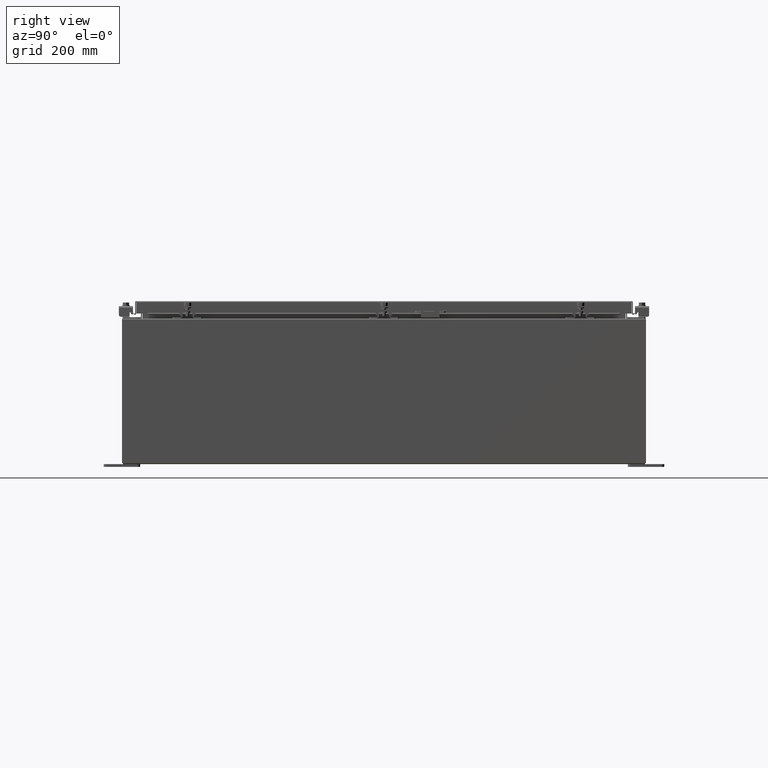
[diagram: clean part render]
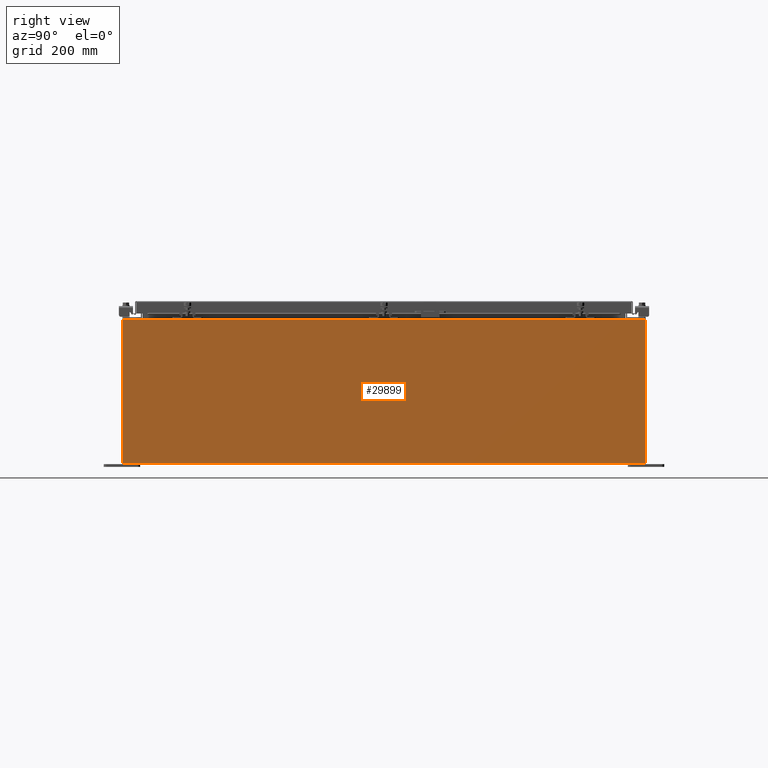
[diagram: same view with one face highlighted and labeled with its STEP entity id]
A machine part, right view. The second image highlights one B-rep face of the part: STEP entity #29899.
In plain terms, the highlighted planar face has unit normal (-1, 0, 0).
Its self-contained STEP definition (entity closure, byte-faithful):
#212 = VERTEX_POINT ( 'NONE', #6620 ) ;
#372 = DIRECTION ( 'NONE',  ( -1.000000000000000000, 0.0000000000000000000, 3.523082860860887800E-015 ) ) ;
#1472 = ORIENTED_EDGE ( 'NONE', *, *, #31131, .T. ) ;
#1556 = FACE_OUTER_BOUND ( 'NONE', #36910, .T. ) ;
#1886 = ORIENTED_EDGE ( 'NONE', *, *, #21458, .T. ) ;
#3416 = LINE ( 'NONE', #3951, #29025 ) ;
#3951 = CARTESIAN_POINT ( 'NONE',  ( 15.00000000000003400, 17.92530000000000000, 9.837599999999994800 ) ) ;
#4575 = ORIENTED_EDGE ( 'NONE', *, *, #23512, .T. ) ;
#5395 = EDGE_CURVE ( 'NONE', #22399, #39773, #17383, .T. ) ;
#6362 = CARTESIAN_POINT ( 'NONE',  ( 14.99999999999999800, -17.92530000000000000, 0.01300000000000022300 ) ) ;
#6620 = CARTESIAN_POINT ( 'NONE',  ( 15.00000000000003400, 17.92530000000000000, 9.837599999999994800 ) ) ;
#6887 = DIRECTION ( 'NONE',  ( 2.147696684564447600E-031, -1.000000000000000000, 6.096072018129156600E-017 ) ) ;
#8188 = VERTEX_POINT ( 'NONE', #33761 ) ;
#9842 = VECTOR ( 'NONE', #40482, 39.37007874015748100 ) ;
#11982 = CARTESIAN_POINT ( 'NONE',  ( 14.99999999999999800, -17.92530000000000000, 0.01299999999999984700 ) ) ;
#17031 = PLANE ( 'NONE',  #19019 ) ;
#17383 = LINE ( 'NONE', #11982, #42954 ) ;
#19019 = AXIS2_PLACEMENT_3D ( 'NONE', #40377, #372, #23763 ) ;
#21458 = EDGE_CURVE ( 'NONE', #22399, #212, #29764, .T. ) ;
#22399 = VERTEX_POINT ( 'NONE', #22468 ) ;
#22468 = CARTESIAN_POINT ( 'NONE',  ( 14.99999999999999800, 17.92530000000000000, 0.01299999999999766100 ) ) ;
#23512 = EDGE_CURVE ( 'NONE', #212, #8188, #3416, .T. ) ;
#23763 = DIRECTION ( 'NONE',  ( 3.523082860860887800E-015, 0.0000000000000000000, 1.000000000000000000 ) ) ;
#25501 = LINE ( 'NONE', #33481, #42167 ) ;
#29025 = VECTOR ( 'NONE', #40757, 39.37007874015748100 ) ;
#29764 = LINE ( 'NONE', #37146, #9842 ) ;
#29899 = ADVANCED_FACE ( 'NONE', ( #1556 ), #17031, .F. ) ;
#31131 = EDGE_CURVE ( 'NONE', #8188, #39773, #25501, .T. ) ;
#33325 = DIRECTION ( 'NONE',  ( -3.523082860860888200E-015, 0.0000000000000000000, -1.000000000000000000 ) ) ;
#33481 = CARTESIAN_POINT ( 'NONE',  ( 14.99999999999999800, -17.92530000000000000, -5.310705656892488900E-014 ) ) ;
#33761 = CARTESIAN_POINT ( 'NONE',  ( 15.00000000000003400, -17.92530000000000000, 9.837600000000001900 ) ) ;
#34372 = ORIENTED_EDGE ( 'NONE', *, *, #5395, .F. ) ;
#36910 = EDGE_LOOP ( 'NONE', ( #4575, #1472, #34372, #1886 ) ) ;
#37146 = CARTESIAN_POINT ( 'NONE',  ( 14.99999999999999800, 17.92530000000000000, -4.916003674356303100E-014 ) ) ;
#39773 = VERTEX_POINT ( 'NONE', #6362 ) ;
#40377 = CARTESIAN_POINT ( 'NONE',  ( 14.99999999999999800, 0.0000000000000000000, -5.310705656892488900E-014 ) ) ;
#40482 = DIRECTION ( 'NONE',  ( 3.523082860860888200E-015, -2.201926788038055100E-016, 1.000000000000000000 ) ) ;
#40757 = DIRECTION ( 'NONE',  ( -0.0000000000000000000, -1.000000000000000000, -0.0000000000000000000 ) ) ;
#42167 = VECTOR ( 'NONE', #33325, 39.37007874015748100 ) ;
#42954 = VECTOR ( 'NONE', #6887, 39.37007874015748100 ) ;